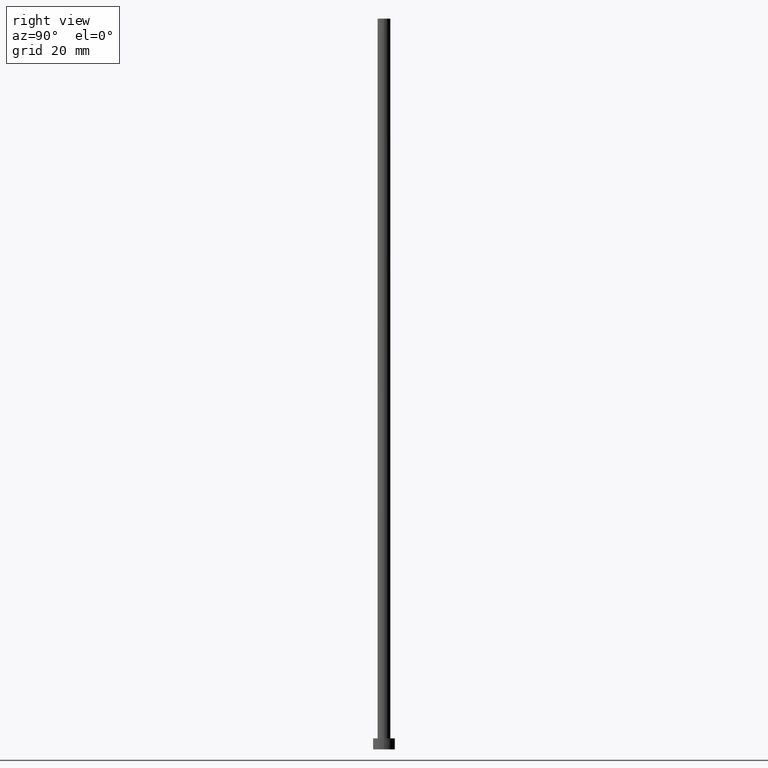
[diagram: clean part render]
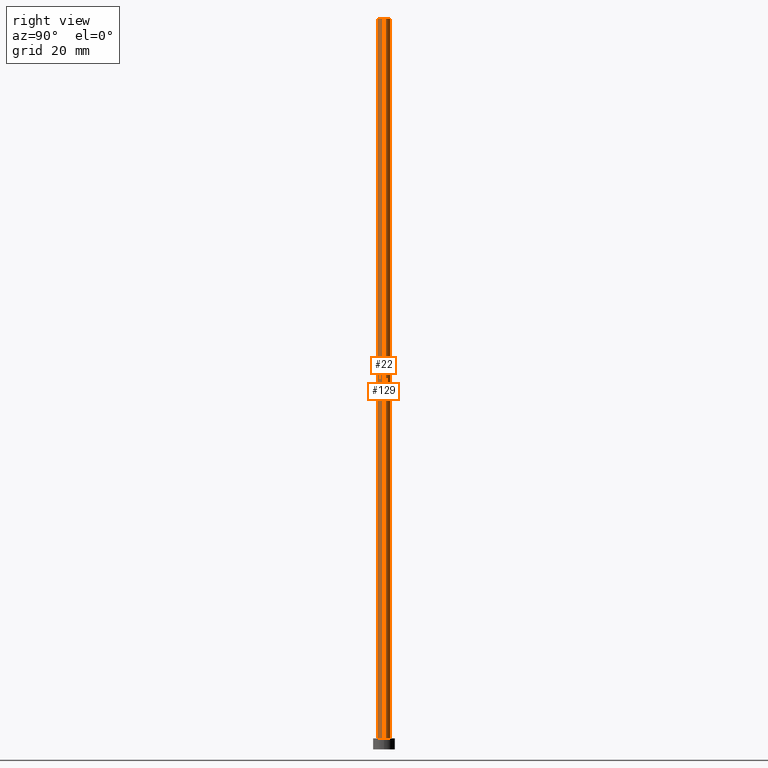
[diagram: same view with one multi-face feature highlighted, each face labeled with its STEP entity id]
A machine part, right view. The highlighted faces form ONE feature: a constant-radius fillet chain: 2 tangent blend faces with common blend radius 1.75 mm. The faces share edges in the B-rep.
Their STEP definitions:
[1] entity #22 (Cylinder):
#17 = CIRCLE ( 'NONE', #52, 1.750000000000000000 ) ;
#22 = ADVANCED_FACE ( 'NONE', ( #171 ), #249, .T. ) ;
#31 = LINE ( 'NONE', #78, #105 ) ;
#33 = CARTESIAN_POINT ( 'NONE',  ( 0.000000000000000000, 0.000000000000000000, 200.0000000000000000 ) ) ;
#48 = LINE ( 'NONE', #131, #112 ) ;
#51 = VERTEX_POINT ( 'NONE', #206 ) ;
#52 = AXIS2_PLACEMENT_3D ( 'NONE', #33, #196, #135 ) ;
#54 = CARTESIAN_POINT ( 'NONE',  ( -1.750000000000000000, 0.000000000000000000, 3.000000000000000000 ) ) ;
#68 = CARTESIAN_POINT ( 'NONE',  ( 0.000000000000000000, 0.000000000000000000, 3.000000000000000000 ) ) ;
#70 = EDGE_LOOP ( 'NONE', ( #185, #225, #102, #132 ) ) ;
#78 = CARTESIAN_POINT ( 'NONE',  ( -1.750000000000000000, 0.000000000000000000, 200.0000000000000000 ) ) ;
#81 = AXIS2_PLACEMENT_3D ( 'NONE', #68, #87, #115 ) ;
#87 = DIRECTION ( 'NONE',  ( 0.000000000000000000, 0.000000000000000000, 1.000000000000000000 ) ) ;
#99 = EDGE_CURVE ( 'NONE', #246, #51, #48, .T. ) ;
#102 = ORIENTED_EDGE ( 'NONE', *, *, #251, .T. ) ;
#105 = VECTOR ( 'NONE', #134, 1000.000000000000000 ) ;
#112 = VECTOR ( 'NONE', #210, 1000.000000000000000 ) ;
#114 = EDGE_CURVE ( 'NONE', #175, #51, #172, .T. ) ;
#115 = DIRECTION ( 'NONE',  ( 1.000000000000000000, 0.000000000000000000, 0.000000000000000000 ) ) ;
#131 = CARTESIAN_POINT ( 'NONE',  ( 1.750000000000000000, 2.143131898507868297E-16, 200.0000000000000000 ) ) ;
#132 = ORIENTED_EDGE ( 'NONE', *, *, #114, .T. ) ;
#134 = DIRECTION ( 'NONE',  ( -0.000000000000000000, -0.000000000000000000, -1.000000000000000000 ) ) ;
#135 = DIRECTION ( 'NONE',  ( 1.000000000000000000, 0.000000000000000000, 0.000000000000000000 ) ) ;
#140 = EDGE_CURVE ( 'NONE', #227, #246, #17, .T. ) ;
#147 = DIRECTION ( 'NONE',  ( -0.000000000000000000, -0.000000000000000000, -1.000000000000000000 ) ) ;
#170 = CARTESIAN_POINT ( 'NONE',  ( 0.000000000000000000, 0.000000000000000000, 200.0000000000000000 ) ) ;
#171 = FACE_OUTER_BOUND ( 'NONE', #70, .T. ) ;
#172 = CIRCLE ( 'NONE', #81, 1.750000000000000000 ) ;
#175 = VERTEX_POINT ( 'NONE', #54 ) ;
#185 = ORIENTED_EDGE ( 'NONE', *, *, #99, .F. ) ;
#187 = AXIS2_PLACEMENT_3D ( 'NONE', #170, #147, #192 ) ;
#192 = DIRECTION ( 'NONE',  ( -1.000000000000000000, 0.000000000000000000, 0.000000000000000000 ) ) ;
#196 = DIRECTION ( 'NONE',  ( 0.000000000000000000, 0.000000000000000000, 1.000000000000000000 ) ) ;
#206 = CARTESIAN_POINT ( 'NONE',  ( 1.750000000000000000, 2.143131898507868297E-16, 3.000000000000000000 ) ) ;
#210 = DIRECTION ( 'NONE',  ( -0.000000000000000000, -0.000000000000000000, -1.000000000000000000 ) ) ;
#211 = CARTESIAN_POINT ( 'NONE',  ( -1.750000000000000000, 0.000000000000000000, 200.0000000000000000 ) ) ;
#225 = ORIENTED_EDGE ( 'NONE', *, *, #140, .F. ) ;
#227 = VERTEX_POINT ( 'NONE', #211 ) ;
#246 = VERTEX_POINT ( 'NONE', #255 ) ;
#249 = CYLINDRICAL_SURFACE ( 'NONE', #187, 1.750000000000000000 ) ;
#251 = EDGE_CURVE ( 'NONE', #227, #175, #31, .T. ) ;
#255 = CARTESIAN_POINT ( 'NONE',  ( 1.750000000000000000, 2.143131898507868297E-16, 200.0000000000000000 ) ) ;
[2] entity #129 (Cylinder):
#27 = ORIENTED_EDGE ( 'NONE', *, *, #35, .F. ) ;
#31 = LINE ( 'NONE', #78, #105 ) ;
#35 = EDGE_CURVE ( 'NONE', #246, #227, #154, .T. ) ;
#46 = AXIS2_PLACEMENT_3D ( 'NONE', #90, #149, #228 ) ;
#48 = LINE ( 'NONE', #131, #112 ) ;
#51 = VERTEX_POINT ( 'NONE', #206 ) ;
#54 = CARTESIAN_POINT ( 'NONE',  ( -1.750000000000000000, 0.000000000000000000, 3.000000000000000000 ) ) ;
#55 = EDGE_CURVE ( 'NONE', #51, #175, #163, .T. ) ;
#58 = CYLINDRICAL_SURFACE ( 'NONE', #167, 1.750000000000000000 ) ;
#71 = CARTESIAN_POINT ( 'NONE',  ( 0.000000000000000000, 0.000000000000000000, 200.0000000000000000 ) ) ;
#78 = CARTESIAN_POINT ( 'NONE',  ( -1.750000000000000000, 0.000000000000000000, 200.0000000000000000 ) ) ;
#86 = EDGE_LOOP ( 'NONE', ( #27, #168, #173, #209 ) ) ;
#90 = CARTESIAN_POINT ( 'NONE',  ( 0.000000000000000000, 0.000000000000000000, 3.000000000000000000 ) ) ;
#99 = EDGE_CURVE ( 'NONE', #246, #51, #48, .T. ) ;
#105 = VECTOR ( 'NONE', #134, 1000.000000000000000 ) ;
#112 = VECTOR ( 'NONE', #210, 1000.000000000000000 ) ;
#117 = AXIS2_PLACEMENT_3D ( 'NONE', #71, #127, #244 ) ;
#120 = CARTESIAN_POINT ( 'NONE',  ( 0.000000000000000000, 0.000000000000000000, 200.0000000000000000 ) ) ;
#127 = DIRECTION ( 'NONE',  ( 0.000000000000000000, 0.000000000000000000, 1.000000000000000000 ) ) ;
#129 = ADVANCED_FACE ( 'NONE', ( #176 ), #58, .T. ) ;
#131 = CARTESIAN_POINT ( 'NONE',  ( 1.750000000000000000, 2.143131898507868297E-16, 200.0000000000000000 ) ) ;
#133 = DIRECTION ( 'NONE',  ( -0.000000000000000000, -0.000000000000000000, -1.000000000000000000 ) ) ;
#134 = DIRECTION ( 'NONE',  ( -0.000000000000000000, -0.000000000000000000, -1.000000000000000000 ) ) ;
#149 = DIRECTION ( 'NONE',  ( 0.000000000000000000, 0.000000000000000000, 1.000000000000000000 ) ) ;
#154 = CIRCLE ( 'NONE', #117, 1.750000000000000000 ) ;
#155 = DIRECTION ( 'NONE',  ( -1.000000000000000000, 0.000000000000000000, 0.000000000000000000 ) ) ;
#163 = CIRCLE ( 'NONE', #46, 1.750000000000000000 ) ;
#167 = AXIS2_PLACEMENT_3D ( 'NONE', #120, #133, #155 ) ;
#168 = ORIENTED_EDGE ( 'NONE', *, *, #99, .T. ) ;
#173 = ORIENTED_EDGE ( 'NONE', *, *, #55, .T. ) ;
#175 = VERTEX_POINT ( 'NONE', #54 ) ;
#176 = FACE_OUTER_BOUND ( 'NONE', #86, .T. ) ;
#206 = CARTESIAN_POINT ( 'NONE',  ( 1.750000000000000000, 2.143131898507868297E-16, 3.000000000000000000 ) ) ;
#209 = ORIENTED_EDGE ( 'NONE', *, *, #251, .F. ) ;
#210 = DIRECTION ( 'NONE',  ( -0.000000000000000000, -0.000000000000000000, -1.000000000000000000 ) ) ;
#211 = CARTESIAN_POINT ( 'NONE',  ( -1.750000000000000000, 0.000000000000000000, 200.0000000000000000 ) ) ;
#227 = VERTEX_POINT ( 'NONE', #211 ) ;
#228 = DIRECTION ( 'NONE',  ( 1.000000000000000000, 0.000000000000000000, 0.000000000000000000 ) ) ;
#244 = DIRECTION ( 'NONE',  ( 1.000000000000000000, 0.000000000000000000, 0.000000000000000000 ) ) ;
#246 = VERTEX_POINT ( 'NONE', #255 ) ;
#251 = EDGE_CURVE ( 'NONE', #227, #175, #31, .T. ) ;
#255 = CARTESIAN_POINT ( 'NONE',  ( 1.750000000000000000, 2.143131898507868297E-16, 200.0000000000000000 ) ) ;